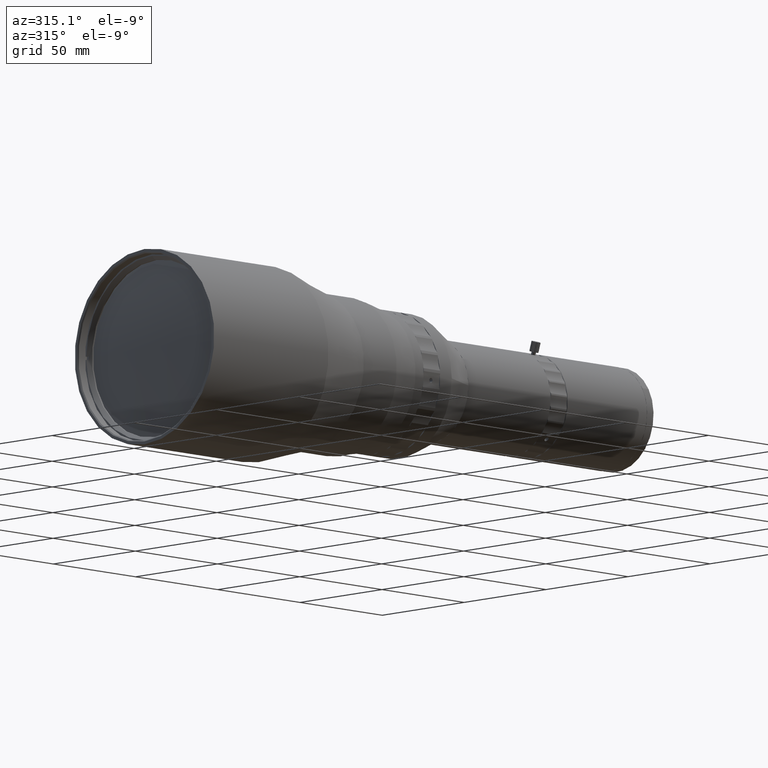
[diagram: clean part render]
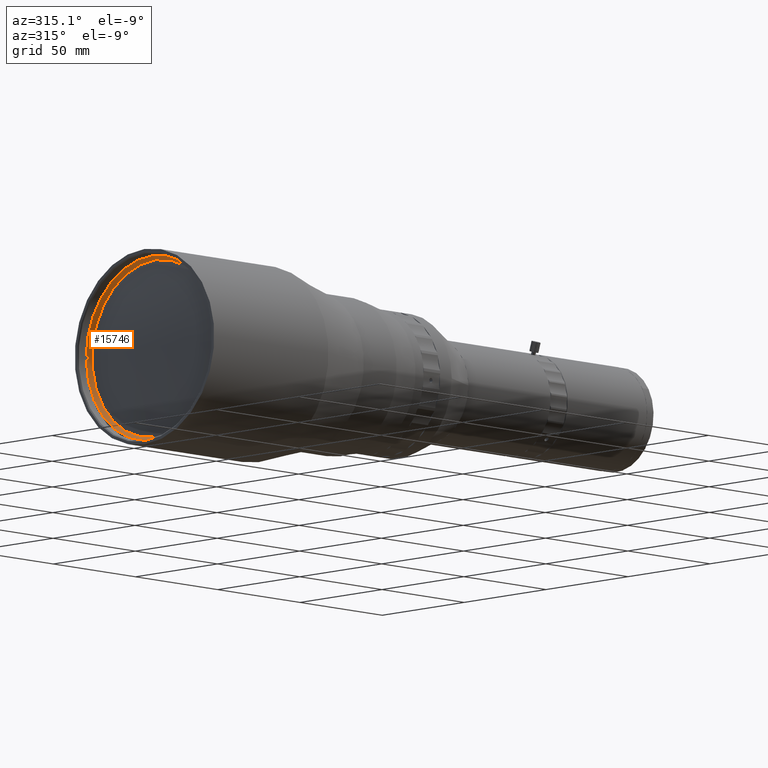
[diagram: same view with one face highlighted and labeled with its STEP entity id]
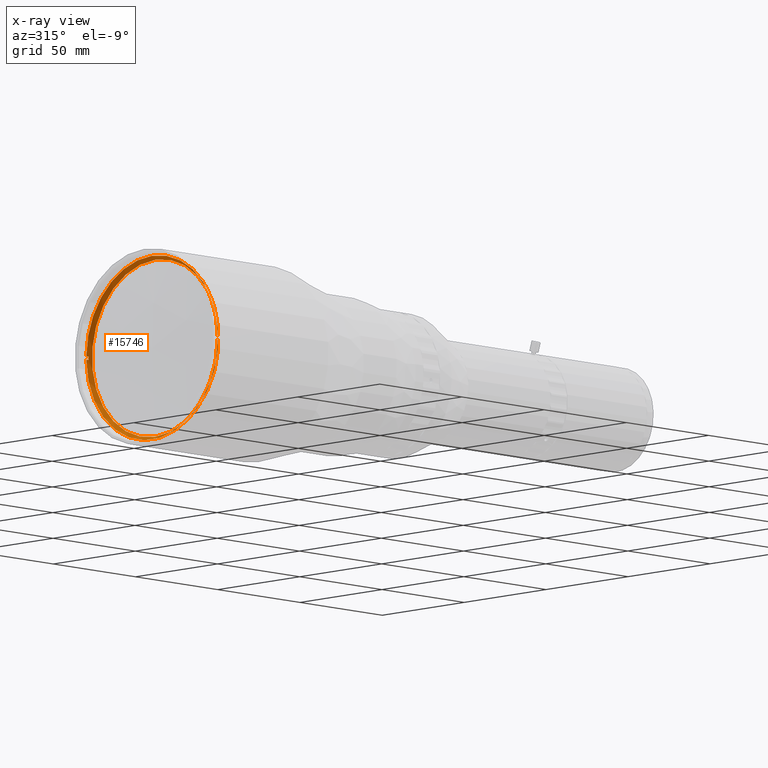
[diagram: x-ray of the same camera — body ghosted, the highlighted face saturated]
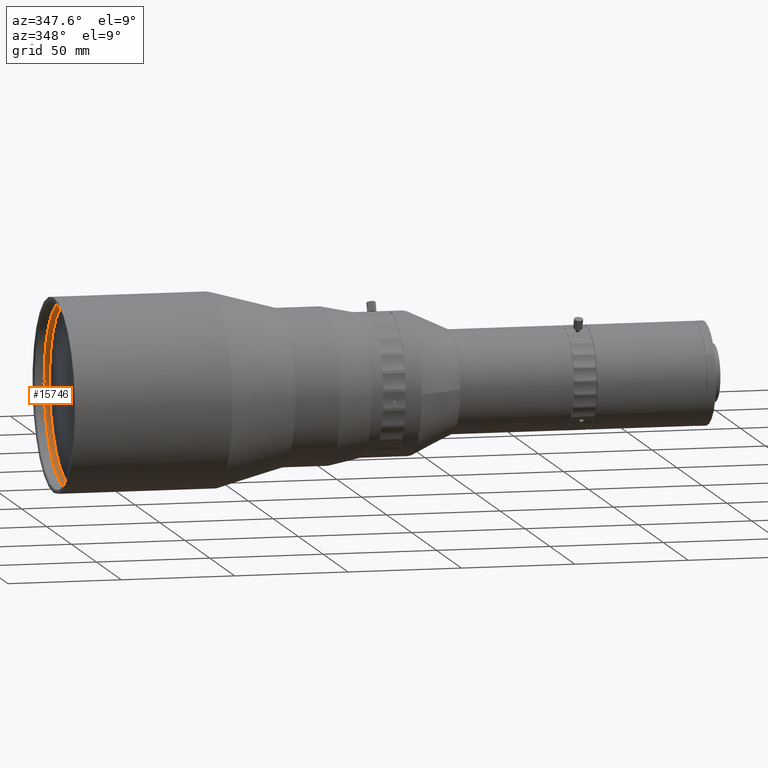
[diagram: same view with one face highlighted and labeled with its STEP entity id]
A machine part, auxiliary view. The second image highlights one B-rep face of the part: STEP entity #15746.
The next image is the same camera in x-ray: the body ghosted, the highlighted face saturated — about 0% of this face is hidden behind the body in this view.
A second angle (auxiliary view) of the same face is appended — the face is thin or edge-on in the first view.
In plain terms, the highlighted conical surface has half-angle 36.87 deg.
Its self-contained STEP definition (entity closure, byte-faithful):
#309 = ORIENTED_EDGE ( 'NONE', *, *, #29041, .F. ) ;
#1721 = CARTESIAN_POINT ( 'NONE',  ( -78.23732065252097811, 49.68557650820222449, 155.1999999608852647 ) ) ;
#2715 = CARTESIAN_POINT ( 'NONE',  ( -78.23732065252097811, 10.19269740323192330, 154.4499999608852647 ) ) ;
#4034 = VERTEX_POINT ( 'NONE', #65484 ) ;
#5298 = EDGE_CURVE ( 'NONE', #24438, #48155, #34682, .T. ) ;
#5306 = CARTESIAN_POINT ( 'NONE',  ( -79.03732065252097527, -29.90028826757889746, 155.1999999608852647 ) ) ;
#5472 = DIRECTION ( 'NONE',  ( 0.000000000000000000, 0.000000000000000000, 1.000000000000000000 ) ) ;
#6271 = AXIS2_PLACEMENT_3D ( 'NONE', #9825, #61417, #58598 ) ;
#7322 = ORIENTED_EDGE ( 'NONE', *, *, #30820, .F. ) ;
#8540 = FACE_OUTER_BOUND ( 'NONE', #68465, .T. ) ;
#9197 = CARTESIAN_POINT ( 'NONE',  ( -79.03732065252097527, -29.90028826757889036, 153.6999999608852647 ) ) ;
#9548 = LINE ( 'NONE', #9197, #19125 ) ;
#9825 = CARTESIAN_POINT ( 'NONE',  ( -78.23732065252097811, 10.19269740323192330, 154.4499999608852647 ) ) ;
#9928 = DIRECTION ( 'NONE',  ( -1.000000000000000000, 0.000000000000000000, 0.000000000000000000 ) ) ;
#10702 = DIRECTION ( 'NONE',  ( 0.000000000000000000, 0.000000000000000000, 1.000000000000000000 ) ) ;
#10877 = VECTOR ( 'NONE', #33148, 1000.000000000000000 ) ;
#11609 = VERTEX_POINT ( 'NONE', #54852 ) ;
#12428 = EDGE_CURVE ( 'NONE', #20227, #48155, #17908, .T. ) ;
#12936 = CARTESIAN_POINT ( 'NONE',  ( -78.23732065252097811, 49.68557650820222449, 153.6999999608852647 ) ) ;
#13487 = AXIS2_PLACEMENT_3D ( 'NONE', #63656, #15971, #10702 ) ;
#14157 = EDGE_CURVE ( 'NONE', #43628, #58225, #67996, .T. ) ;
#14287 = CARTESIAN_POINT ( 'NONE',  ( -79.03732065252097527, 50.28568307404274407, 153.6999999608852647 ) ) ;
#14456 = DIRECTION ( 'NONE',  ( -0.7999488487603049203, -0.6000681955970192938, -0.000000000000000000 ) ) ;
#15746 = ADVANCED_FACE ( 'NONE', ( #8540, #40962 ), #33842, .F. ) ;
#15971 = DIRECTION ( 'NONE',  ( 1.000000000000000000, -0.000000000000000000, -0.000000000000000000 ) ) ;
#17434 = ORIENTED_EDGE ( 'NONE', *, *, #12428, .F. ) ;
#17908 = CIRCLE ( 'NONE', #13487, 40.09999999999802611 ) ;
#18110 = DIRECTION ( 'NONE',  ( 1.000000000000000000, -0.000000000000000000, -0.000000000000000000 ) ) ;
#18903 = CARTESIAN_POINT ( 'NONE',  ( -79.03732065252097527, 50.28568307404272986, 155.1999999608852647 ) ) ;
#19125 = VECTOR ( 'NONE', #14456, 1000.000000000000114 ) ;
#19485 = CARTESIAN_POINT ( 'NONE',  ( -78.23732065252097811, -29.30018170173838143, 155.1999999608852647 ) ) ;
#20227 = VERTEX_POINT ( 'NONE', #52435 ) ;
#20702 = CARTESIAN_POINT ( 'NONE',  ( -78.77065373065408949, -29.70025308583905144, 155.1999999608852647 ) ) ;
#20747 = DIRECTION ( 'NONE',  ( 0.000000000000000000, 0.000000000000000000, 1.000000000000000000 ) ) ;
#21666 = CARTESIAN_POINT ( 'NONE',  ( -79.03732065252097527, 10.19269740323192330, 154.4499999608852647 ) ) ;
#21737 = CARTESIAN_POINT ( 'NONE',  ( -78.50398706010963679, -29.50021756906076220, 155.1999999608852647 ) ) ;
#24438 = VERTEX_POINT ( 'NONE', #19485 ) ;
#26548 = ORIENTED_EDGE ( 'NONE', *, *, #31646, .F. ) ;
#27462 = CIRCLE ( 'NONE', #66395, 39.49999999999748468 ) ;
#28673 = EDGE_CURVE ( 'NONE', #30954, #20227, #50637, .T. ) ;
#29041 = EDGE_CURVE ( 'NONE', #24438, #50338, #27462, .T. ) ;
#30813 = ORIENTED_EDGE ( 'NONE', *, *, #5298, .T. ) ;
#30820 = EDGE_CURVE ( 'NONE', #4034, #30954, #37499, .T. ) ;
#30954 = VERTEX_POINT ( 'NONE', #1721 ) ;
#31646 = EDGE_CURVE ( 'NONE', #58225, #4034, #39379, .T. ) ;
#32667 = CARTESIAN_POINT ( 'NONE',  ( -77.03732065252275163, 10.19269740323192330, 154.4499999608852647 ) ) ;
#33148 = DIRECTION ( 'NONE',  ( 0.7999488487603071407, -0.6000681955970165182, -0.000000000000000000 ) ) ;
#33842 = CONICAL_SURFACE ( 'NONE', #52819, 40.09999999999802611, 0.6435011087937284602 ) ;
#34121 = AXIS2_PLACEMENT_3D ( 'NONE', #32667, #64713, #5472 ) ;
#34682 = B_SPLINE_CURVE_WITH_KNOTS ( 'NONE', 3,
 ( #63163, #21737, #20702, #5306 ),
 .UNSPECIFIED., .F., .F.,
 ( 4, 4 ),
 ( 0.000000000000000000, 0.001000063943138082643 ),
 .UNSPECIFIED. ) ;
#35266 = CIRCLE ( 'NONE', #34121, 38.59999999999796927 ) ;
#36506 = ORIENTED_EDGE ( 'NONE', *, *, #65718, .T. ) ;
#37499 = CIRCLE ( 'NONE', #6271, 39.49999999999748468 ) ;
#37972 = AXIS2_PLACEMENT_3D ( 'NONE', #21666, #48888, #64108 ) ;
#39060 = ORIENTED_EDGE ( 'NONE', *, *, #14157, .F. ) ;
#39333 = DIRECTION ( 'NONE',  ( 0.000000000000000000, 8.871244104995882357E-15, 1.000000000000000000 ) ) ;
#39379 = LINE ( 'NONE', #12936, #10877 ) ;
#40624 = ORIENTED_EDGE ( 'NONE', *, *, #28673, .F. ) ;
#40962 = FACE_BOUND ( 'NONE', #43866, .T. ) ;
#42184 = ORIENTED_EDGE ( 'NONE', *, *, #49271, .F. ) ;
#43628 = VERTEX_POINT ( 'NONE', #57996 ) ;
#43866 = EDGE_LOOP ( 'NONE', ( #36506 ) ) ;
#48155 = VERTEX_POINT ( 'NONE', #64443 ) ;
#48888 = DIRECTION ( 'NONE',  ( 1.000000000000000000, -0.000000000000000000, -0.000000000000000000 ) ) ;
#49271 = EDGE_CURVE ( 'NONE', #50338, #43628, #9548, .T. ) ;
#50338 = VERTEX_POINT ( 'NONE', #62533 ) ;
#50637 = LINE ( 'NONE', #18903, #68598 ) ;
#52435 = CARTESIAN_POINT ( 'NONE',  ( -79.03732065252097527, 50.28568307404274407, 155.1999999608852647 ) ) ;
#52819 = AXIS2_PLACEMENT_3D ( 'NONE', #55298, #9928, #20747 ) ;
#54852 = CARTESIAN_POINT ( 'NONE',  ( -77.03732065252275163, 10.19269740323192330, 193.0499999608832411 ) ) ;
#55298 = CARTESIAN_POINT ( 'NONE',  ( -79.03732065252097527, 10.19269740323192330, 154.4499999608852647 ) ) ;
#56183 = DIRECTION ( 'NONE',  ( -0.7999488487603082509, 0.6000681955970148529, -0.000000000000000000 ) ) ;
#57996 = CARTESIAN_POINT ( 'NONE',  ( -79.03732065252097527, -29.90028826757889746, 153.6999999608852647 ) ) ;
#58225 = VERTEX_POINT ( 'NONE', #14287 ) ;
#58598 = DIRECTION ( 'NONE',  ( 0.000000000000000000, -2.753599036550702015E-14, 1.000000000000000000 ) ) ;
#61417 = DIRECTION ( 'NONE',  ( 1.000000000000000000, -0.000000000000000000, -0.000000000000000000 ) ) ;
#62533 = CARTESIAN_POINT ( 'NONE',  ( -78.23732065252097811, -29.30018170173838143, 153.6999999608852647 ) ) ;
#63163 = CARTESIAN_POINT ( 'NONE',  ( -78.23732065252097811, -29.30018170173838143, 155.1999999608852647 ) ) ;
#63656 = CARTESIAN_POINT ( 'NONE',  ( -79.03732065252097527, 10.19269740323192330, 154.4499999608852647 ) ) ;
#64108 = DIRECTION ( 'NONE',  ( 0.000000000000000000, 0.000000000000000000, 1.000000000000000000 ) ) ;
#64443 = CARTESIAN_POINT ( 'NONE',  ( -79.03732065252097527, -29.90028826757889746, 155.1999999608852647 ) ) ;
#64713 = DIRECTION ( 'NONE',  ( 1.000000000000000000, -0.000000000000000000, -0.000000000000000000 ) ) ;
#65484 = CARTESIAN_POINT ( 'NONE',  ( -78.23732065252097811, 49.68557650820222449, 153.6999999608852647 ) ) ;
#65718 = EDGE_CURVE ( 'NONE', #11609, #11609, #35266, .T. ) ;
#66395 = AXIS2_PLACEMENT_3D ( 'NONE', #2715, #18110, #39333 ) ;
#67996 = CIRCLE ( 'NONE', #37972, 40.09999999999802611 ) ;
#68465 = EDGE_LOOP ( 'NONE', ( #17434, #40624, #7322, #26548, #39060, #42184, #309, #30813 ) ) ;
#68598 = VECTOR ( 'NONE', #56183, 1000.000000000000227 ) ;